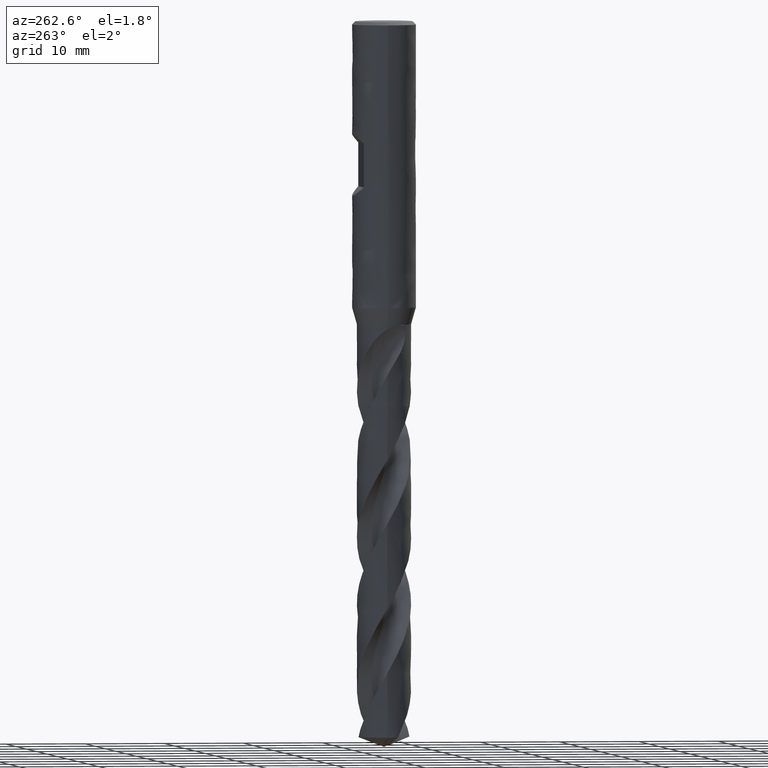
[diagram: clean part render]
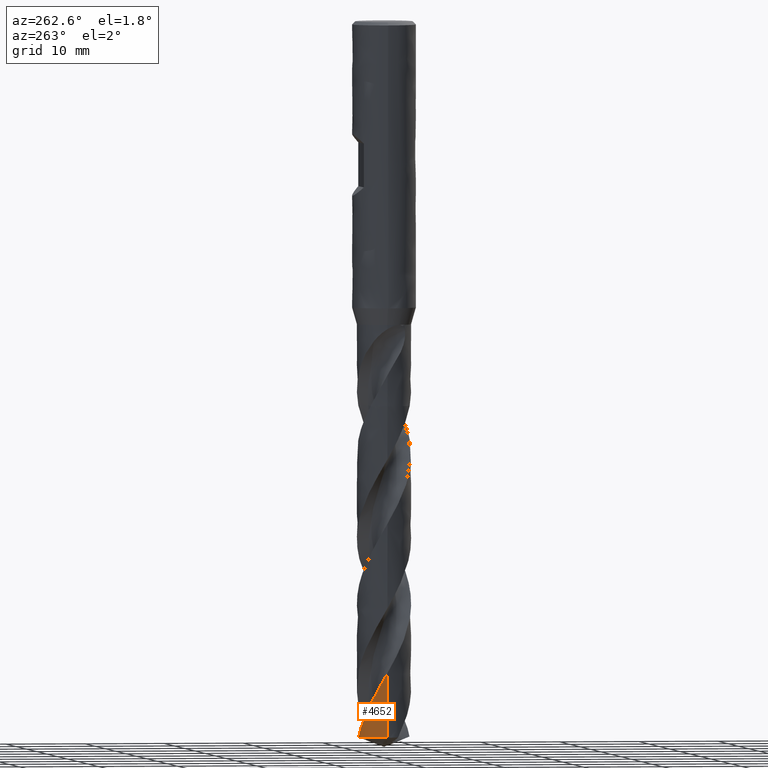
[diagram: same view with one face highlighted and labeled with its STEP entity id]
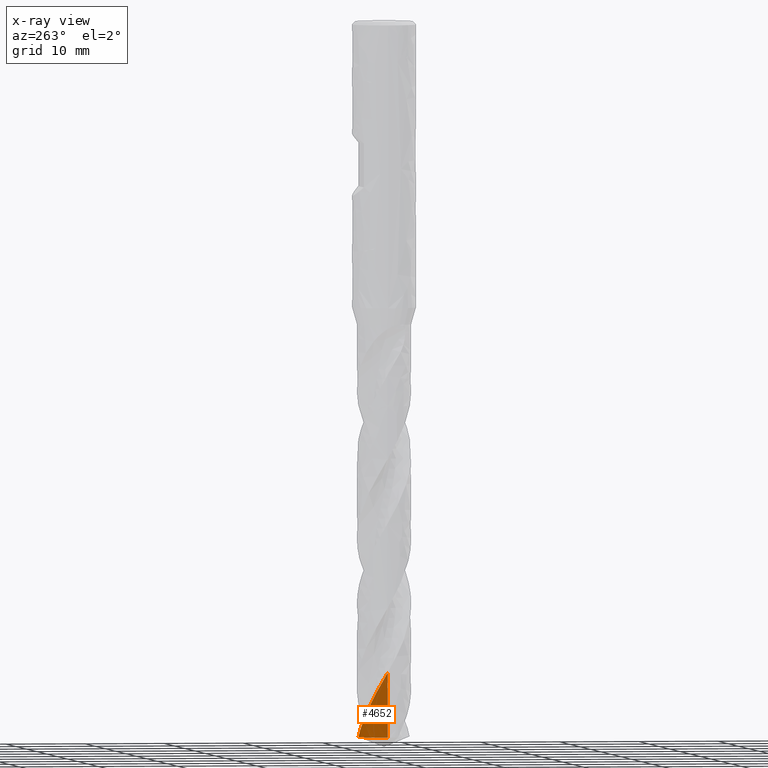
[diagram: x-ray of the same camera — body ghosted, the highlighted face saturated]
A machine part, auxiliary view. The second image highlights one B-rep face of the part: STEP entity #4652.
The next image is the same camera in x-ray: the body ghosted, the highlighted face saturated — about 0% of this face is hidden behind the body in this view.
In plain terms, the highlighted face is a freeform B-spline surface patch.
Its self-contained STEP definition (entity closure, byte-faithful):
#2182 = VERTEX_POINT('', #2183);
#2183 = CARTESIAN_POINT('', (-3.4, 5.20795423810453E-15, -81.6523472029734));
#2370 = EDGE_CURVE('', #2182, #2371, #2373, .T.);
#2371 = VERTEX_POINT('', #2372);
#2372 = CARTESIAN_POINT('', (-3.4, 5.70455794497107E-15, -89.7625012034949));
#2373 = LINE('', #2374, #2375);
#2374 = CARTESIAN_POINT('', (-3.4, 5.20795423810453E-15, -81.6523472029734));
#2375 = VECTOR('', #2376, 8.11015400052153);
#2376 = DIRECTION('', (0., 4.9660370686654E-16, -8.11015400052153));
#2690 = VERTEX_POINT('', #2691);
#2691 = CARTESIAN_POINT('', (-0.735095085746695, 3.3195835905895, -89.7625012034949));
#2803 = EDGE_CURVE('', #2804, #2690, #2806, .T.);
#2804 = VERTEX_POINT('', #2805);
#2805 = CARTESIAN_POINT('', (-1.28697186382097, 3.14701500182843, -88.7401810171045));
#2806 = B_SPLINE_CURVE_WITH_KNOTS('', 3, (#2807, #2808, #2809, #2810, #2811, #2812, #2813), .UNSPECIFIED., .F., .U., (4, 3, 4), (0., 0.66415973632366, 1.17476919769521), .UNSPECIFIED.);
#2807 = CARTESIAN_POINT('', (-1.28697186382097, 3.14701500182843, -88.7401810171045));
#2808 = CARTESIAN_POINT('', (-1.18598776410134, 3.18831245193812, -88.9328173311259));
#2809 = CARTESIAN_POINT('', (-1.08299218441027, 3.22475247689288, -89.1255119546052));
#2810 = CARTESIAN_POINT('', (-0.978517787725171, 3.25614848234915, -89.3181551702661));
#2811 = CARTESIAN_POINT('', (-0.898197327900579, 3.28028589471922, -89.4662602769231));
#2812 = CARTESIAN_POINT('', (-0.816973672942862, 3.30145223602852, -89.6143922419133));
#2813 = CARTESIAN_POINT('', (-0.735095085746704, 3.3195835905895, -89.7625012034949));
#4618 = EDGE_CURVE('', #2371, #2690, #4619, .T.);
#4619 = CIRCLE('', #4620, 3.39999999999999);
#4620 = AXIS2_PLACEMENT_3D('', #4621, #4622, #4623);
#4621 = CARTESIAN_POINT('', (3.36555473240346E-31, 5.49636798911602E-15, -89.7625012034949));
#4622 = DIRECTION('', (3.74939945665464E-33, 6.12323399573677E-17, -1.));
#4623 = DIRECTION('', (-1., 6.12323399573677E-17, 0.));
#4652 = ADVANCED_FACE('', (#4653), #4701, .T.);
#4653 = FACE_OUTER_BOUND('', #4654, .T.);
#4654 = EDGE_LOOP('', (#4655, #4656, #4657, #4658));
#4655 = ORIENTED_EDGE('', *, *, #2803, .T.);
#4656 = ORIENTED_EDGE('', *, *, #4618, .F.);
#4657 = ORIENTED_EDGE('', *, *, #2370, .F.);
#4658 = ORIENTED_EDGE('', *, *, #4659, .F.);
#4659 = EDGE_CURVE('', #2804, #2182, #4660, .T.);
#4660 = B_SPLINE_CURVE_WITH_KNOTS('', 3, (#4661, #4662, #4663, #4664, #4665, #4666, #4667, #4668, #4669, #4670, #4671, #4672, #4673, #4674, #4675, #4676, #4677, #4678, #4679, #4680, #4681, #4682, #4683, #4684, #4685, #4686, #4687, #4688, #4689, #4690, #4691, #4692, #4693, #4694, #4695, #4696, #4697, #4698, #4699, #4700), .UNSPECIFIED., .F., .U., (4, 3, 3, 3, 3, 3, 3, 3, 3, 3, 3, 3, 3, 4), (0., 0.665716777704962, 1.33123795374757, 1.9965670947863, 2.66170678543689, 3.32665867946627, 3.99142353510913, 4.65600122790305, 5.32039075129782, 5.98459019850064, 6.64859672850917, 7.31240652820254, 7.97601480782261, 8.14814218717554), .UNSPECIFIED.);
#4661 = CARTESIAN_POINT('', (-1.28697186382097, 3.14701500182843, -88.7401810171045));
#4662 = CARTESIAN_POINT('', (-1.3881927084282, 3.10562073489103, -88.5470930907735));
#4663 = CARTESIAN_POINT('', (-1.48745202527211, 3.05932189376719, -88.3539563063927));
#4664 = CARTESIAN_POINT('', (-1.58423258508448, 3.00835621500457, -88.1608808940696));
#4665 = CARTESIAN_POINT('', (-1.68098470872246, 2.95740551103576, -87.9678622113841));
#4666 = CARTESIAN_POINT('', (-1.77531251850328, 2.90176278015448, -87.7747948392919));
#4667 = CARTESIAN_POINT('', (-1.86672369488533, 2.84171473708282, -87.5817886505706));
#4668 = CARTESIAN_POINT('', (-1.95810849472784, 2.78168402077191, -87.3888381534569));
#4669 = CARTESIAN_POINT('', (-2.0466289525677, 2.71721725453633, -87.1958391686483));
#4670 = CARTESIAN_POINT('', (-2.13182216748454, 2.64864762590677, -87.0029011344476));
#4671 = CARTESIAN_POINT('', (-2.21699112390039, 2.58009752226409, -86.8100180387476));
#4672 = CARTESIAN_POINT('', (-2.29888252078164, 2.50740838790416, -86.6170866841475));
#4673 = CARTESIAN_POINT('', (-2.37706718837008, 2.43095692721496, -86.4242160322437));
#4674 = CARTESIAN_POINT('', (-2.45522978117241, 2.35452705195542, -86.2313998357533));
#4675 = CARTESIAN_POINT('', (-2.52973217816395, 2.27429347678143, -86.0385356011705));
#4676 = CARTESIAN_POINT('', (-2.60018304702321, 2.190672983805, -85.8457318392617));
#4677 = CARTESIAN_POINT('', (-2.67061409938604, 2.10707601169109, -85.6529823094032));
#4678 = CARTESIAN_POINT('', (-2.73703641296252, 2.02004590415742, -85.4601849251314));
#4679 = CARTESIAN_POINT('', (-2.79910031092151, 1.93003560832413, -85.2674478312487));
#4680 = CARTESIAN_POINT('', (-2.8611467349484, 1.84005065465997, -85.0747650020031));
#4681 = CARTESIAN_POINT('', (-2.91887317980376, 1.74703497614103, -84.8820344306482));
#4682 = CARTESIAN_POINT('', (-2.97197509232071, 1.65147329697617, -84.6893640497672));
#4683 = CARTESIAN_POINT('', (-3.02506196949254, 1.55593867527042, -84.4967482218305));
#4684 = CARTESIAN_POINT('', (-3.07355781562562, 1.45780390968404, -84.3040846582224));
#4685 = CARTESIAN_POINT('', (-3.11720624184945, 1.35758065903094, -84.111481302694));
#4686 = CARTESIAN_POINT('', (-3.16084218062978, 1.25738608139746, -83.9189330493476));
#4687 = CARTESIAN_POINT('', (-3.19965876088311, 1.15504618059302, -83.7263369237921));
#4688 = CARTESIAN_POINT('', (-3.23345029558018, 1.0510942802683, -83.5338011790358));
#4689 = CARTESIAN_POINT('', (-3.26723201550234, 0.947172572845769, -83.3413213564214));
#4690 = CARTESIAN_POINT('', (-3.29601094515166, 0.841580420072376, -83.1487933590778));
#4691 = CARTESIAN_POINT('', (-3.31963403772533, 0.734867236700691, -82.9563260787931));
#4692 = CARTESIAN_POINT('', (-3.3432501313039, 0.628185670063554, -82.7639158222681));
#4693 = CARTESIAN_POINT('', (-3.36172670265273, 0.520323995102553, -82.5714570251342));
#4694 = CARTESIAN_POINT('', (-3.37496456038515, 0.411842465204662, -82.3790592596955));
#4695 = CARTESIAN_POINT('', (-3.38819839935487, 0.303393868243084, -82.1867199025718));
#4696 = CARTESIAN_POINT('', (-3.39620401651137, 0.194266035036972, -81.9943317692393));
#4697 = CARTESIAN_POINT('', (-3.39893670209941, 0.0850252616671533, -81.8020048422669));
#4698 = CARTESIAN_POINT('', (-3.39964550882065, 0.0566902806006117, -81.7521188915707));
#4699 = CARTESIAN_POINT('', (-3.4, 0.0283451864504014, -81.7022323915665));
#4700 = CARTESIAN_POINT('', (-3.4, 4.87754193197368E-15, -81.6523472029734));
#4701 = (
   BOUNDED_SURFACE ()
   B_SPLINE_SURFACE (2, 1, ((#4702, #4703), (#4704, #4705), (#4706, #4707)), .UNSPECIFIED., .F., .F., .U.)
   B_SPLINE_SURFACE_WITH_KNOTS ((3, 3), (2, 2), (0., 4.55026828596114), (0.84331989737826, 1.), .UNSPECIFIED.)
   GEOMETRIC_REPRESENTATION_ITEM ()
   RATIONAL_B_SPLINE_SURFACE (((1., 1.), (0.750455773515152, 0.750455773515152), (0.926133552675872, 0.926133552675872)))
   REPRESENTATION_ITEM ('')
   SURFACE ()
);
#4702 = CARTESIAN_POINT('', (-3.4, 5.20795423810453E-15, -81.6523472029734));
#4703 = CARTESIAN_POINT('', (-3.4, 5.70455794497107E-15, -89.7625012034949));
#4704 = CARTESIAN_POINT('', (-3.4, 2.72946183194388, -81.6523472029734));
#4705 = CARTESIAN_POINT('', (-3.4, 2.72946183194388, -89.7625012034949));
#4706 = CARTESIAN_POINT('', (-0.735095085746698, 3.3195835905895, -81.6523472029734));
#4707 = CARTESIAN_POINT('', (-0.735095085746698, 3.3195835905895, -89.7625012034949));